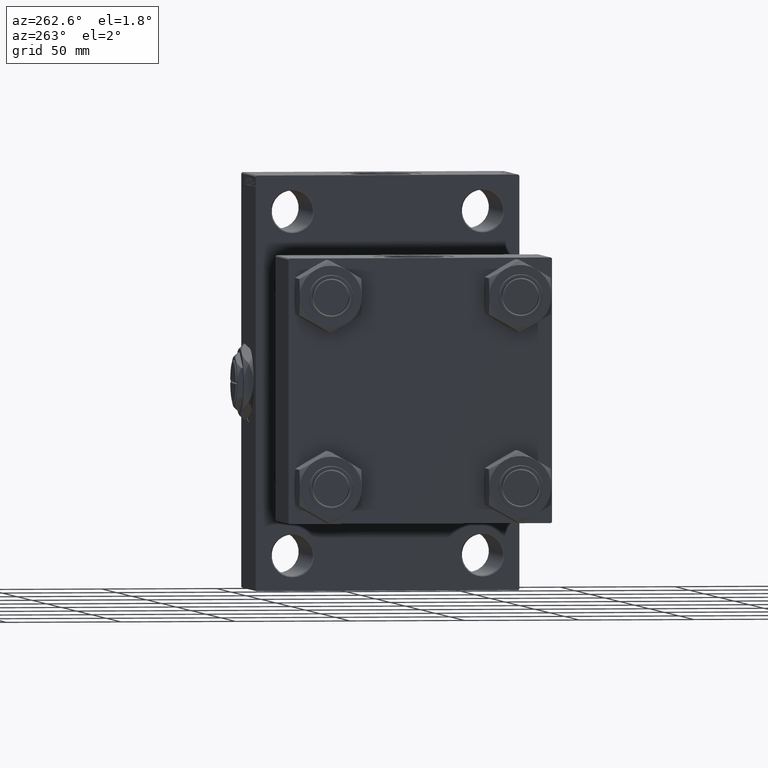
[diagram: clean part render]
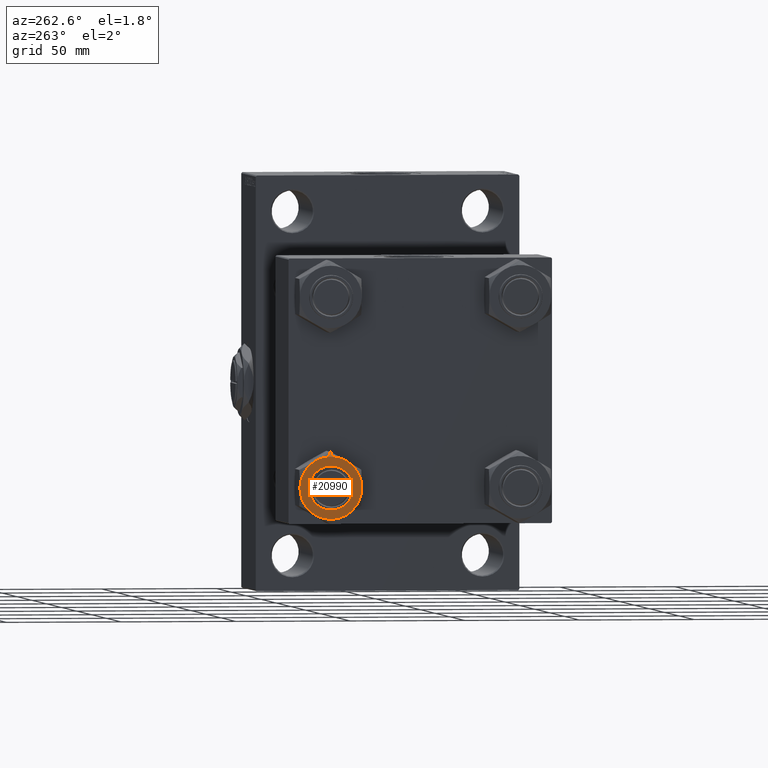
[diagram: same view with one face highlighted and labeled with its STEP entity id]
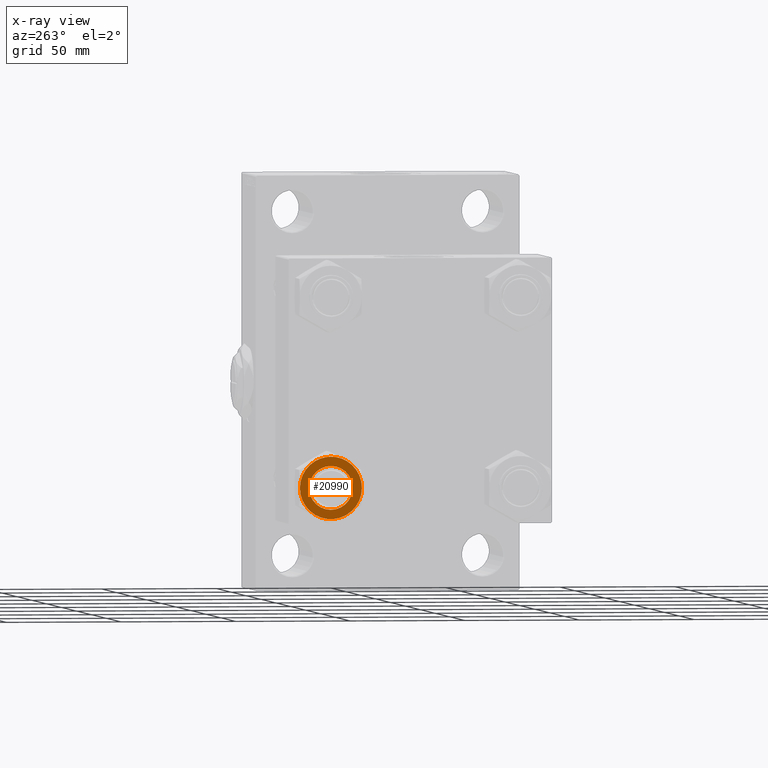
[diagram: x-ray of the same camera — body ghosted, the highlighted face saturated]
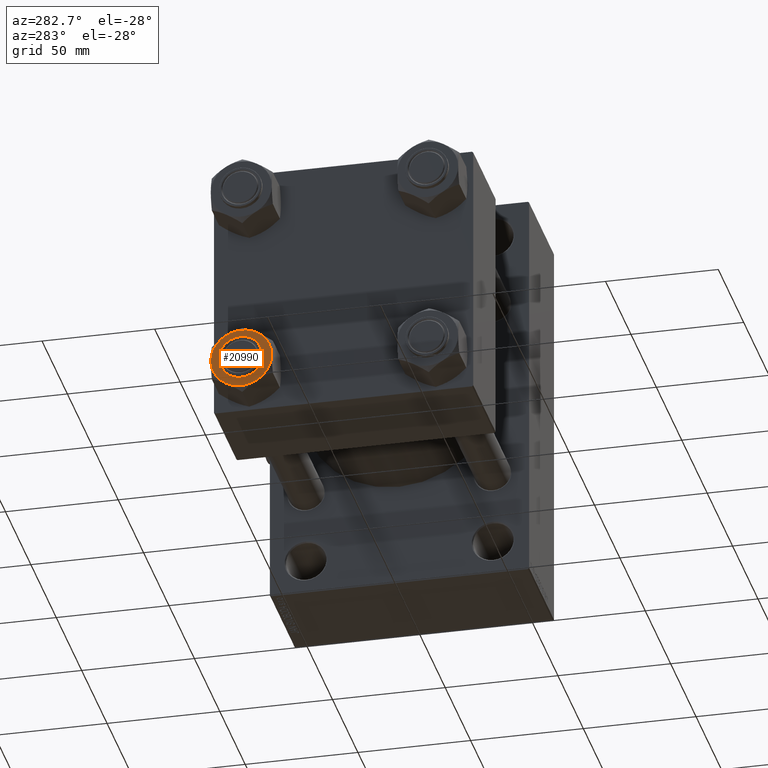
[diagram: same view with one face highlighted and labeled with its STEP entity id]
A machine part, auxiliary view. The second image highlights one B-rep face of the part: STEP entity #20990.
The next image is the same camera in x-ray: the body ghosted, the highlighted face saturated — about 0% of this face is hidden behind the body in this view.
A second angle (auxiliary view) of the same face is appended — the face is thin or edge-on in the first view.
In plain terms, the highlighted planar face has unit normal (1, 0, 0).
Its self-contained STEP definition (entity closure, byte-faithful):
#423 = EDGE_LOOP ( 'NONE', ( #21750, #45992, #8661, #7838, #10973, #19161, #25451 ) ) ;
#1155 = VERTEX_POINT ( 'NONE', #30397 ) ;
#2057 = CIRCLE ( 'NONE', #26858, 9.500000000000000000 ) ;
#2293 = CARTESIAN_POINT ( 'NONE',  ( 0.000000000000000000, 0.000000000000000000, 0.000000000000000000 ) ) ;
#3351 = AXIS2_PLACEMENT_3D ( 'NONE', #22317, #10547, #18058 ) ;
#3473 = CARTESIAN_POINT ( 'NONE',  ( 0.000000000000000000, 0.000000000000000000, 0.000000000000000000 ) ) ;
#4037 = EDGE_CURVE ( 'NONE', #48651, #5882, #42649, .T. ) ;
#4411 = DIRECTION ( 'NONE',  ( 0.000000000000000000, 0.000000000000000000, -1.000000000000000000 ) ) ;
#5011 = CARTESIAN_POINT ( 'NONE',  ( 0.000000000000000000, 0.000000000000000000, 0.000000000000000000 ) ) ;
#5517 = DIRECTION ( 'NONE',  ( 0.000000000000000000, 0.000000000000000000, 1.000000000000000000 ) ) ;
#5714 = CARTESIAN_POINT ( 'NONE',  ( 0.000000000000000000, 0.000000000000000000, 0.000000000000000000 ) ) ;
#5882 = VERTEX_POINT ( 'NONE', #28511 ) ;
#6525 = CARTESIAN_POINT ( 'NONE',  ( 9.500000000000000000, 1.163414459189985485E-15, 0.000000000000000000 ) ) ;
#6564 = CIRCLE ( 'NONE', #3351, 13.52731680711293905 ) ;
#7296 = AXIS2_PLACEMENT_3D ( 'NONE', #3473, #34481, #27225 ) ;
#7838 = ORIENTED_EDGE ( 'NONE', *, *, #47282, .F. ) ;
#7969 = DIRECTION ( 'NONE',  ( -1.000000000000000000, 0.000000000000000000, 0.000000000000000000 ) ) ;
#8661 = ORIENTED_EDGE ( 'NONE', *, *, #25290, .F. ) ;
#9818 = EDGE_LOOP ( 'NONE', ( #11714, #46177 ) ) ;
#10305 = DIRECTION ( 'NONE',  ( 0.000000000000000000, -0.000000000000000000, -1.000000000000000000 ) ) ;
#10547 = DIRECTION ( 'NONE',  ( 0.000000000000000000, 0.000000000000000000, 1.000000000000000000 ) ) ;
#10973 = ORIENTED_EDGE ( 'NONE', *, *, #12372, .F. ) ;
#11714 = ORIENTED_EDGE ( 'NONE', *, *, #32589, .F. ) ;
#11946 = CIRCLE ( 'NONE', #14926, 13.52731680711294082 ) ;
#12372 = EDGE_CURVE ( 'NONE', #5882, #33744, #11946, .T. ) ;
#13111 = DIRECTION ( 'NONE',  ( 0.000000000000000000, -0.000000000000000000, -1.000000000000000000 ) ) ;
#13233 = AXIS2_PLACEMENT_3D ( 'NONE', #46506, #27994, #23766 ) ;
#13666 = VERTEX_POINT ( 'NONE', #27269 ) ;
#14926 = AXIS2_PLACEMENT_3D ( 'NONE', #43880, #13111, #46899 ) ;
#15573 = DIRECTION ( 'NONE',  ( -1.000000000000000000, 0.000000000000000000, 0.000000000000000000 ) ) ;
#16059 = CARTESIAN_POINT ( 'NONE',  ( 0.000000000000000000, 0.000000000000000000, 0.000000000000000000 ) ) ;
#16277 = AXIS2_PLACEMENT_3D ( 'NONE', #5714, #25247, #40487 ) ;
#16430 = CARTESIAN_POINT ( 'NONE',  ( 0.000000000000000000, 0.000000000000000000, 0.000000000000000000 ) ) ;
#16672 = FACE_OUTER_BOUND ( 'NONE', #423, .T. ) ;
#17654 = EDGE_CURVE ( 'NONE', #1155, #13666, #23290, .T. ) ;
#18058 = DIRECTION ( 'NONE',  ( 1.000000000000000000, 0.000000000000000000, 0.000000000000000000 ) ) ;
#19161 = ORIENTED_EDGE ( 'NONE', *, *, #4037, .F. ) ;
#19700 = CARTESIAN_POINT ( 'NONE',  ( 11.71500000000000519, -6.763658403556470411, 0.000000000000000000 ) ) ;
#20990 = ADVANCED_FACE ( 'NONE', ( #42931, #16672 ), #38678, .F. ) ;
#21722 = CARTESIAN_POINT ( 'NONE',  ( 0.000000000000000000, 13.52731680711293905, 0.000000000000000000 ) ) ;
#21750 = ORIENTED_EDGE ( 'NONE', *, *, #36742, .F. ) ;
#22317 = CARTESIAN_POINT ( 'NONE',  ( 0.000000000000000000, 0.000000000000000000, 0.000000000000000000 ) ) ;
#22617 = AXIS2_PLACEMENT_3D ( 'NONE', #16059, #31310, #15573 ) ;
#22700 = EDGE_CURVE ( 'NONE', #48651, #45457, #6564, .T. ) ;
#23290 = CIRCLE ( 'NONE', #7296, 13.52731680711294082 ) ;
#23766 = DIRECTION ( 'NONE',  ( 1.000000000000000000, 0.000000000000000000, 0.000000000000000000 ) ) ;
#25010 = CIRCLE ( 'NONE', #22617, 13.52731680711294082 ) ;
#25247 = DIRECTION ( 'NONE',  ( 0.000000000000000000, -0.000000000000000000, -1.000000000000000000 ) ) ;
#25290 = EDGE_CURVE ( 'NONE', #39770, #1155, #25010, .T. ) ;
#25451 = ORIENTED_EDGE ( 'NONE', *, *, #22700, .T. ) ;
#26281 = CARTESIAN_POINT ( 'NONE',  ( 0.000000000000000000, 0.000000000000000000, 0.000000000000000000 ) ) ;
#26858 = AXIS2_PLACEMENT_3D ( 'NONE', #5011, #5517, #47049 ) ;
#27225 = DIRECTION ( 'NONE',  ( -1.000000000000000000, 0.000000000000000000, 0.000000000000000000 ) ) ;
#27269 = CARTESIAN_POINT ( 'NONE',  ( -11.71500000000000519, 6.763658403556469523, 0.000000000000000000 ) ) ;
#27994 = DIRECTION ( 'NONE',  ( 0.000000000000000000, 0.000000000000000000, 1.000000000000000000 ) ) ;
#28511 = CARTESIAN_POINT ( 'NONE',  ( 13.52731680711294082, 0.000000000000000000, 0.000000000000000000 ) ) ;
#29206 = CIRCLE ( 'NONE', #13233, 9.500000000000000000 ) ;
#30397 = CARTESIAN_POINT ( 'NONE',  ( -11.71500000000000874, -6.763658403556465082, 0.000000000000000000 ) ) ;
#31310 = DIRECTION ( 'NONE',  ( 0.000000000000000000, -0.000000000000000000, -1.000000000000000000 ) ) ;
#31929 = DIRECTION ( 'NONE',  ( -1.000000000000000000, 0.000000000000000000, -0.000000000000000000 ) ) ;
#32347 = CARTESIAN_POINT ( 'NONE',  ( 1.502314598737159031E-15, -13.52731680711294082, 0.000000000000000000 ) ) ;
#32589 = EDGE_CURVE ( 'NONE', #47720, #48275, #29206, .T. ) ;
#33243 = CARTESIAN_POINT ( 'NONE',  ( 11.71500000000000696, 6.763658403556468635, 0.000000000000000000 ) ) ;
#33744 = VERTEX_POINT ( 'NONE', #19700 ) ;
#34481 = DIRECTION ( 'NONE',  ( 0.000000000000000000, -0.000000000000000000, -1.000000000000000000 ) ) ;
#35334 = AXIS2_PLACEMENT_3D ( 'NONE', #16430, #4411, #31929 ) ;
#36529 = EDGE_CURVE ( 'NONE', #48275, #47720, #2057, .T. ) ;
#36742 = EDGE_CURVE ( 'NONE', #13666, #45457, #39610, .T. ) ;
#38068 = AXIS2_PLACEMENT_3D ( 'NONE', #2293, #10305, #44067 ) ;
#38678 = PLANE ( 'NONE',  #35334 ) ;
#39610 = CIRCLE ( 'NONE', #45243, 13.52731680711294082 ) ;
#39770 = VERTEX_POINT ( 'NONE', #32347 ) ;
#40487 = DIRECTION ( 'NONE',  ( -1.000000000000000000, 0.000000000000000000, 0.000000000000000000 ) ) ;
#42649 = CIRCLE ( 'NONE', #16277, 13.52731680711294082 ) ;
#42931 = FACE_BOUND ( 'NONE', #9818, .T. ) ;
#43880 = CARTESIAN_POINT ( 'NONE',  ( 0.000000000000000000, 0.000000000000000000, 0.000000000000000000 ) ) ;
#44067 = DIRECTION ( 'NONE',  ( -1.000000000000000000, 0.000000000000000000, 0.000000000000000000 ) ) ;
#44251 = CARTESIAN_POINT ( 'NONE',  ( -9.500000000000000000, 0.000000000000000000, 0.000000000000000000 ) ) ;
#45243 = AXIS2_PLACEMENT_3D ( 'NONE', #26281, #45765, #7969 ) ;
#45457 = VERTEX_POINT ( 'NONE', #21722 ) ;
#45765 = DIRECTION ( 'NONE',  ( 0.000000000000000000, -0.000000000000000000, -1.000000000000000000 ) ) ;
#45992 = ORIENTED_EDGE ( 'NONE', *, *, #17654, .F. ) ;
#46177 = ORIENTED_EDGE ( 'NONE', *, *, #36529, .F. ) ;
#46506 = CARTESIAN_POINT ( 'NONE',  ( 0.000000000000000000, 0.000000000000000000, 0.000000000000000000 ) ) ;
#46899 = DIRECTION ( 'NONE',  ( -1.000000000000000000, 0.000000000000000000, 0.000000000000000000 ) ) ;
#47049 = DIRECTION ( 'NONE',  ( 1.000000000000000000, 0.000000000000000000, 0.000000000000000000 ) ) ;
#47282 = EDGE_CURVE ( 'NONE', #33744, #39770, #47637, .T. ) ;
#47637 = CIRCLE ( 'NONE', #38068, 13.52731680711294082 ) ;
#47720 = VERTEX_POINT ( 'NONE', #44251 ) ;
#48275 = VERTEX_POINT ( 'NONE', #6525 ) ;
#48651 = VERTEX_POINT ( 'NONE', #33243 ) ;